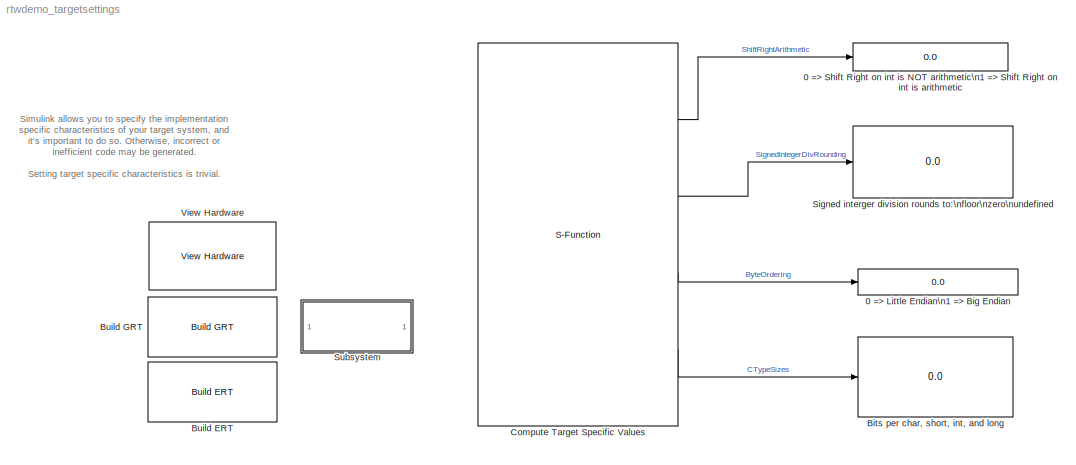
MODEL rtwdemo_targetsettings
KIND model
BLOCK [Display] 0 => Little Endian\n1 => Big Endian   
  Decimation = 1
  Format = long
  Ports = [1]
BLOCK [Display] 0 => Shift Right on int is NOT arithmetic\n1 => Shift Right on int is arithmetic    
  Decimation = 1
  Format = long
  Ports = [1]
BLOCK [Display] Bits per char, short, int, and long
  Decimation = 1
  Format = long
  Ports = [1]
BLOCK [Reference] Build ERT  REF=rtwdemowidgets/Build ERT
  Ports = []
  ShowPortLabels = on
  SourceBlock = rtwdemowidgets/Build ERT
  attrib_overrides = {}
BLOCK [Reference] Build GRT  REF=rtwdemowidgets/Build GRT
  Ports = []
  ShowPortLabels = on
  SourceBlock = rtwdemowidgets/Build GRT
  attrib_overrides = {}
BLOCK [S-Function] Compute Target Specific Values
  FunctionName = sfix_target_specific
  MaskDescription = Used to get information about a fixed point target compiler/processor.
  MaskDisplay = port_label('output',1,'Shift Right on int is arithmetic' );\nport_label('output',2,'Signed integer division rounding' );\nport_label('output',3,'Byte ordering' );\nport_label('output',4,'Bits per char, short, int, long' );\n
  MaskHelp = web(fpbhelp);
  MaskIconFrame = on
  MaskIconOpaque = on
  MaskIconRotate = none
  MaskIconUnits = normalized
  MaskSelfModifiable = on
  MaskType = Fixed-Point Target Specific
  Ports = [0, 4]
BLOCK [Display] Signed interger division rounds to:\nfloor\nzero\nundefined
  Decimation = 1
  Format = long
  Ports = [1]
BLOCK [SubSystem] Subsystem
  MaskDisplay = disp(['My microprocessor\\nis not listed ..','.        '])
  MaskIconFrame = on
  MaskIconOpaque = on
  MaskIconRotate = none
  MaskIconUnits = autoscale
  MinAlgLoopOccurrences = off
  Ports = []
  PropExecContextAcrossSSBoundary = on
  RTWSystemCode = Auto
  TreatAsAtomicUnit = off
BLOCK [Reference] View Hardware  REF=rtwdemowidgets/View Hardware
  Ports = []
  ShowPortLabels = on
  SourceBlock = rtwdemowidgets/View Hardware
ANNOTATION (root): Simulink allows you to specify the implementation\nspecific characteristics of your target system, and\nit's important to do so. Otherwise, incorrect or\ninefficient code may be generated.\n\nSetting target specific characteristics is trivial.\nYou simply choose from a list of microprocessors\ncurrently on the market.\n\nTo view the settings on the Hardware Implementation\npage of the Configuratio...<+60ch>
ANNOTATION Subsystem: If your system is not listed and you are not certain of its values, use the code generated\nby this model to compute the necessary C compiler and target hardware settings.\n\nIf you use a cross-development system that includes a source level debugger, first\nconfigure the model for your intended target. Then, generate code and build an executable\nusing your target development system. Download the...<+603ch>
LINE Compute Target Specific Values:1 -> 0 => Shift Right on int is NOT arithmetic\n1 => Shift Right on int is arithmetic    :1
LINE Compute Target Specific Values:2 -> Signed interger division rounds to:\nfloor\nzero\nundefined:1
LINE Compute Target Specific Values:3 -> 0 => Little Endian\n1 => Big Endian   :1
LINE Compute Target Specific Values:4 -> Bits per char, short, int, and long:1
